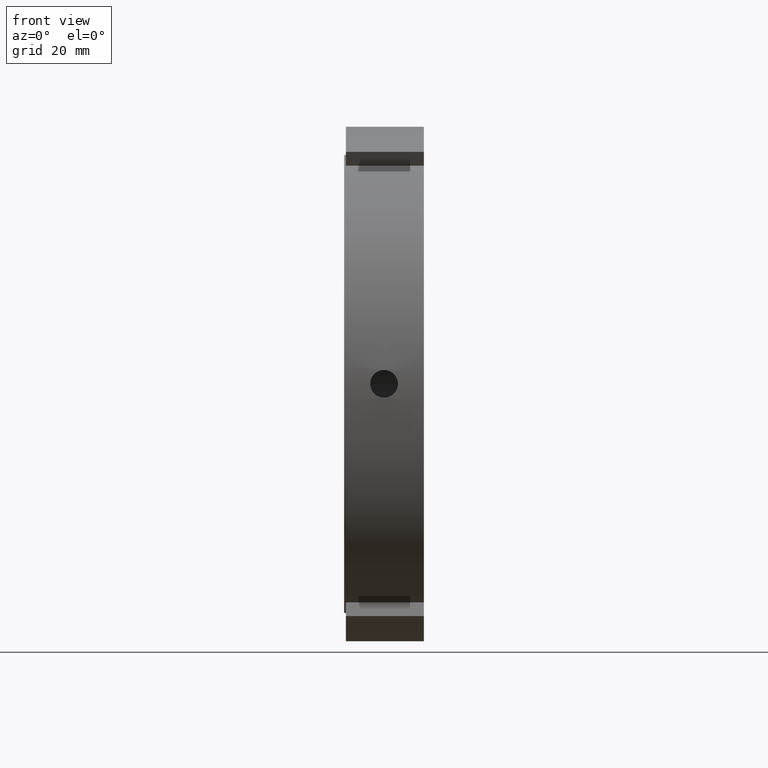
[diagram: clean part render]
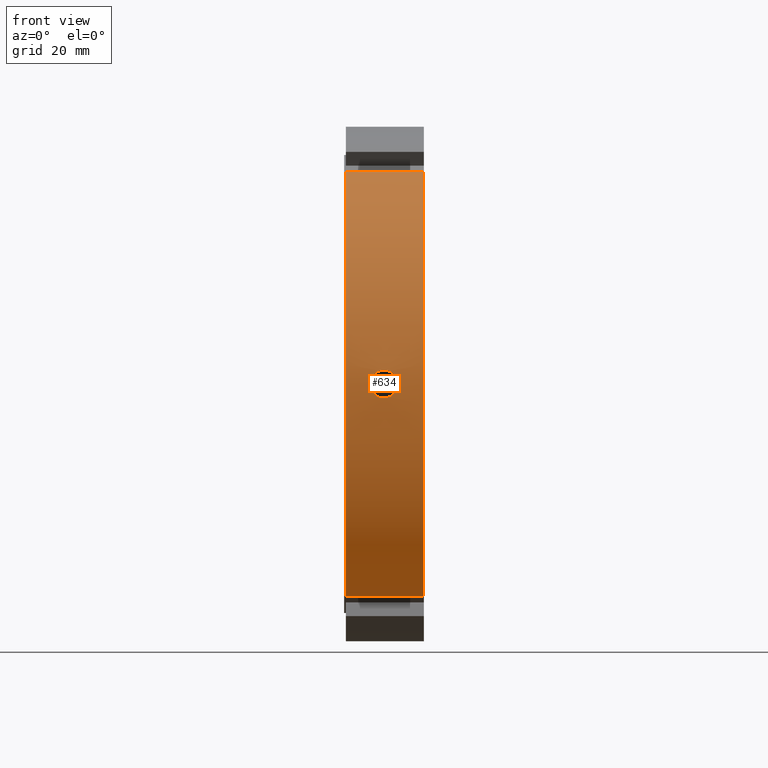
[diagram: same view with one face highlighted and labeled with its STEP entity id]
A machine part, front view. The second image highlights one B-rep face of the part: STEP entity #634.
In plain terms, the highlighted cylindrical surface (partial cylindrical patch) has radius 77.5 mm, axis along (1, 0, 0).
Its self-contained STEP definition (entity closure, byte-faithful):
#75=CARTESIAN_POINT('',(0.499999999999980,-43.829848854707578,-63.915525104418016));
#76=VERTEX_POINT('',#75);
#91=CARTESIAN_POINT('',(23.999999999999986,-43.829848854707578,-63.915525104418016));
#92=VERTEX_POINT('',#91);
#99=CARTESIAN_POINT('',(0.499999999999979,-43.829848854707578,-63.915525104417995));
#100=DIRECTION('',(1.0,0.0,0.0));
#101=VECTOR('',#100,23.500000000000007);
#102=LINE('',#99,#101);
#103=EDGE_CURVE('',#76,#92,#102,.T.);
#303=CARTESIAN_POINT('',(0.499999999999980,-43.829848854707535,63.915525104418045));
#304=VERTEX_POINT('',#303);
#313=CARTESIAN_POINT('',(23.999999999999986,-43.829848854707535,63.915525104418045));
#314=VERTEX_POINT('',#313);
#315=CARTESIAN_POINT('',(23.999999999999986,-43.829848854707521,63.915525104418037));
#316=DIRECTION('',(-1.0,0.0,0.0));
#317=VECTOR('',#316,23.500000000000007);
#318=LINE('',#315,#317);
#319=EDGE_CURVE('',#314,#304,#318,.T.);
#499=CARTESIAN_POINT('',(23.999999999999986,0.0,0.0));
#500=DIRECTION('',(1.0,0.0,0.0));
#501=DIRECTION('',(0.0,1.0,0.0));
#502=AXIS2_PLACEMENT_3D('',#499,#500,#501);
#503=CIRCLE('',#502,77.500000000000000);
#504=EDGE_CURVE('',#314,#92,#503,.T.);
#576=CARTESIAN_POINT('',(12.249999999999982,0.0,0.0));
#577=DIRECTION('',(1.0,0.0,0.0));
#578=DIRECTION('',(0.0,1.0,0.0));
#579=AXIS2_PLACEMENT_3D('',#576,#577,#578);
#580=CYLINDRICAL_SURFACE('',#579,77.500000000000000);
#581=ORIENTED_EDGE('',*,*,#103,.T.);
#582=ORIENTED_EDGE('',*,*,#504,.F.);
#583=ORIENTED_EDGE('',*,*,#319,.T.);
#584=CARTESIAN_POINT('',(0.499999999999980,0.0,0.0));
#585=DIRECTION('',(1.0,0.0,0.0));
#586=DIRECTION('',(0.0,1.0,0.0));
#587=AXIS2_PLACEMENT_3D('',#584,#585,#586);
#588=CIRCLE('',#587,77.500000000000000);
#589=EDGE_CURVE('',#304,#76,#588,.T.);
#590=ORIENTED_EDGE('',*,*,#589,.T.);
#591=EDGE_LOOP('',(#581,#582,#583,#590));
#592=FACE_OUTER_BOUND('',#591,.T.);
#593=CARTESIAN_POINT('',(11.999999999999984,-77.386760211291957,4.188000000000000));
#594=VERTEX_POINT('',#593);
#595=CARTESIAN_POINT('',(11.999999999999984,-77.386760211291957,4.188000000000000));
#596=CARTESIAN_POINT('',(12.525964593773828,-77.386760211291957,4.188000000000000));
#597=CARTESIAN_POINT('',(13.086917241225178,-77.392674092582283,4.082864877807352));
#598=CARTESIAN_POINT('',(14.118723575508259,-77.414040093353165,3.655432283331679));
#599=CARTESIAN_POINT('',(14.589585949451681,-77.429184389171354,3.333140449766825));
#600=CARTESIAN_POINT('',(15.333140342570605,-77.457617213580491,2.589586056647902));
#601=CARTESIAN_POINT('',(15.655432256882111,-77.472751856454039,2.118723634096456));
#602=CARTESIAN_POINT('',(16.082864919867326,-77.494095782631945,1.086917144953995));
#603=CARTESIAN_POINT('',(16.187999999999985,-77.500000000000000,0.525964442120110));
#604=CARTESIAN_POINT('',(16.187999999999985,-77.500000000000000,-0.525964442120109));
#605=CARTESIAN_POINT('',(16.082864919867326,-77.494095782631945,-1.086917144953994));
#606=CARTESIAN_POINT('',(15.655432256882111,-77.472751856454039,-2.118723634096456));
#607=CARTESIAN_POINT('',(15.333140342570605,-77.457617213580491,-2.589586056647901));
#608=CARTESIAN_POINT('',(14.589585949451681,-77.429184389171354,-3.333140449766825));
#609=CARTESIAN_POINT('',(14.118723575508259,-77.414040093353165,-3.655432283331679));
#610=CARTESIAN_POINT('',(13.086917241225178,-77.392674092582283,-4.082864877807352));
#611=CARTESIAN_POINT('',(12.525964593773828,-77.386760211291957,-4.188000000000000));
#612=CARTESIAN_POINT('',(11.474035406226140,-77.386760211291957,-4.188000000000000));
#613=CARTESIAN_POINT('',(10.913082758774790,-77.392674092582283,-4.082864877807352));
#614=CARTESIAN_POINT('',(9.881276424491713,-77.414040093353165,-3.655432283331681));
#615=CARTESIAN_POINT('',(9.410414050548289,-77.429184389171354,-3.333140449766825));
#616=CARTESIAN_POINT('',(8.666859657429365,-77.457617213580491,-2.589586056647902));
#617=CARTESIAN_POINT('',(8.344567743117855,-77.472751856454039,-2.118723634096456));
#618=CARTESIAN_POINT('',(7.917135080132639,-77.494095782631945,-1.086917144953995));
#619=CARTESIAN_POINT('',(7.811999999999983,-77.500000000000000,-0.525964442120110));
#620=CARTESIAN_POINT('',(7.811999999999983,-77.500000000000000,0.525964442120110));
#621=CARTESIAN_POINT('',(7.917135080132638,-77.494095782631945,1.086917144953996));
#622=CARTESIAN_POINT('',(8.344567743117855,-77.472751856454039,2.118723634096456));
#623=CARTESIAN_POINT('',(8.666859657429365,-77.457617213580491,2.589586056647901));
#624=CARTESIAN_POINT('',(9.410414050548287,-77.429184389171354,3.333140449766824));
#625=CARTESIAN_POINT('',(9.881276424491711,-77.414040093353165,3.655432283331679));
#626=CARTESIAN_POINT('',(10.913082758774790,-77.392674092582283,4.082864877807352));
#627=CARTESIAN_POINT('',(11.474035406226140,-77.386760211291957,4.188000000000000));
#628=CARTESIAN_POINT('',(11.999999999999984,-77.386760211291957,4.188000000000000));
#629=B_SPLINE_CURVE_WITH_KNOTS('',3,(#595,#596,#597,#598,#599,#600,#601,#602,#603,#604,#605,#606,#607,#608,#609,#610,#611,#612,#613,#614,#615,#616,#617,#618,#619,#620,#621,#622,#623,#624,#625,#626,#627,#628),.UNSPECIFIED.,.T.,.U.,(4,2,2,2,2,2,2,2,2,2,2,2,2,2,2,2,4),(0.0,0.157789378132153,0.315578756264306,0.473368088900339,0.631157421536372,0.788946754172404,0.946736086808437,1.104525464940590,1.262314843072743,1.420104221204896,1.577893599337049,1.735682931973082,1.893472264609115,2.051261597245148,2.209050929881181,2.366840308013333,2.524629686145486),.UNSPECIFIED.);
#630=EDGE_CURVE('',#594,#594,#629,.T.);
#631=ORIENTED_EDGE('',*,*,#630,.T.);
#632=EDGE_LOOP('',(#631));
#633=FACE_BOUND('',#632,.T.);
#634=ADVANCED_FACE('',(#592,#633),#580,.T.);